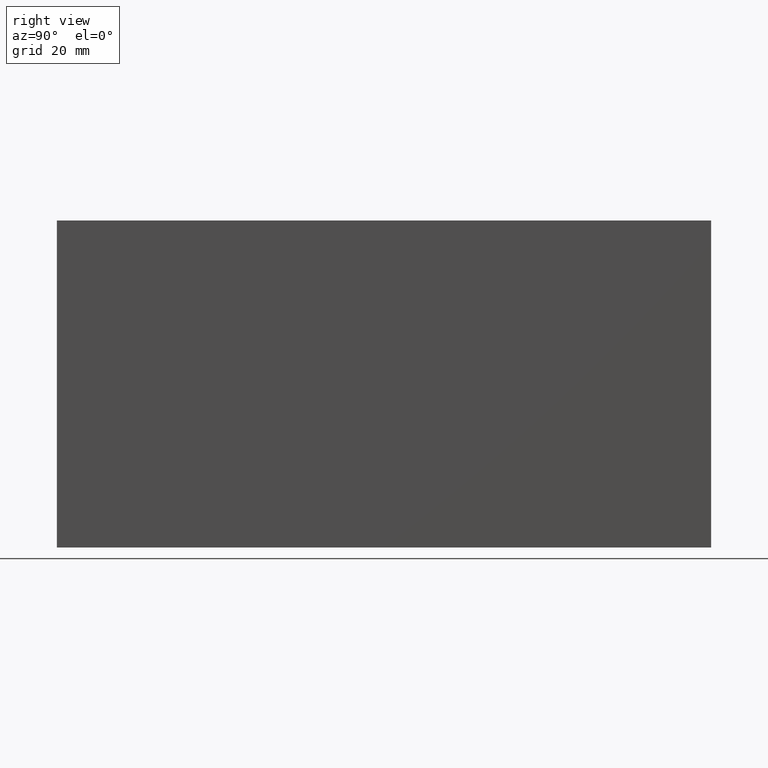
[diagram: clean part render]
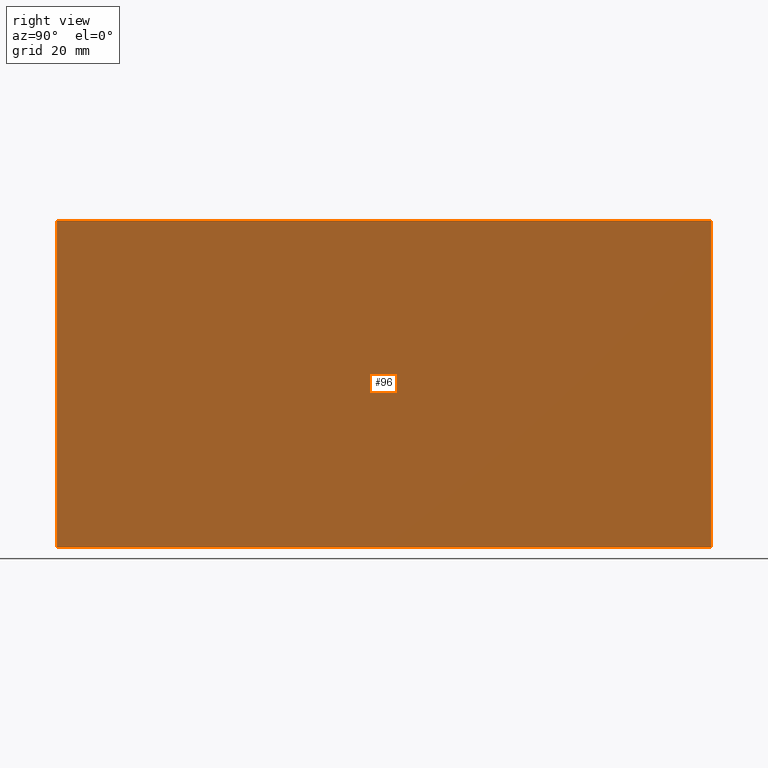
[diagram: same view with one face highlighted and labeled with its STEP entity id]
A machine part, right view. The second image highlights one B-rep face of the part: STEP entity #96.
In plain terms, the highlighted face is a freeform B-spline surface patch.
Its self-contained STEP definition (entity closure, byte-faithful):
#10=CARTESIAN_POINT('',(0.800000000000011,0.0,100.0));
#11=VERTEX_POINT('',#10);
#26=CARTESIAN_POINT('',(0.800000000000011,0.0,0.0));
#27=VERTEX_POINT('',#26);
#33=CARTESIAN_POINT('',(0.800000000000011,0.0,0.0));
#34=CARTESIAN_POINT('',(0.800000000000011,0.0,100.0));
#35=QUASI_UNIFORM_CURVE('',1,(#33,#34),.UNSPECIFIED.,.F.,.U.);
#36=EDGE_CURVE('',#27,#11,#35,.T.);
#46=CARTESIAN_POINT('',(0.800000000000011,200.0,100.0));
#47=VERTEX_POINT('',#46);
#55=CARTESIAN_POINT('',(0.800000000000011,200.0,0.0));
#56=VERTEX_POINT('',#55);
#57=CARTESIAN_POINT('',(0.800000000000011,200.0,0.0));
#58=CARTESIAN_POINT('',(0.800000000000011,200.0,100.0));
#59=QUASI_UNIFORM_CURVE('',1,(#57,#58),.UNSPECIFIED.,.F.,.U.);
#60=EDGE_CURVE('',#56,#47,#59,.T.);
#77=CARTESIAN_POINT('',(0.800000000000011,-9.989999612361194,104.994999806180600));
#78=CARTESIAN_POINT('',(0.800000000000011,-9.989999612361194,-4.995002488389618));
#79=CARTESIAN_POINT('',(0.800000000000011,209.990004976779200,104.994999806180600));
#80=CARTESIAN_POINT('',(0.800000000000011,209.990004976779200,-4.995002488389618));
#81=B_SPLINE_SURFACE_WITH_KNOTS('',1,1,((#77,#79),(#78,#80)),.UNSPECIFIED.,.F.,.F.,.U.,(2,2),(2,2),(0.0,109.990002294570200),(0.0,219.980004589140410),.UNSPECIFIED.);
#82=ORIENTED_EDGE('',*,*,#36,.F.);
#83=CARTESIAN_POINT('',(0.800000000000011,200.0,0.0));
#84=CARTESIAN_POINT('',(0.800000000000011,0.0,0.0));
#85=QUASI_UNIFORM_CURVE('',1,(#83,#84),.UNSPECIFIED.,.F.,.U.);
#86=EDGE_CURVE('',#56,#27,#85,.T.);
#87=ORIENTED_EDGE('',*,*,#86,.F.);
#88=ORIENTED_EDGE('',*,*,#60,.T.);
#89=CARTESIAN_POINT('',(0.800000000000011,200.0,100.0));
#90=CARTESIAN_POINT('',(0.800000000000011,0.0,100.0));
#91=QUASI_UNIFORM_CURVE('',1,(#89,#90),.UNSPECIFIED.,.F.,.U.);
#92=EDGE_CURVE('',#47,#11,#91,.T.);
#93=ORIENTED_EDGE('',*,*,#92,.T.);
#94=EDGE_LOOP('',(#82,#87,#88,#93));
#95=FACE_OUTER_BOUND('',#94,.T.);
#96=ADVANCED_FACE('',(#95),#81,.T.);